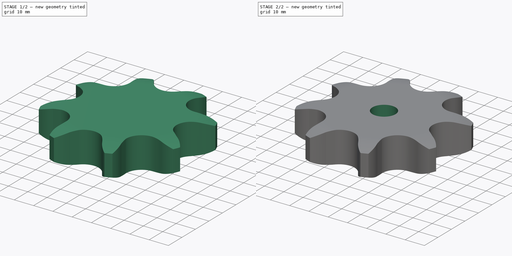
[diagram: build sequence overview — one tinted view per stage of 2, left to right]
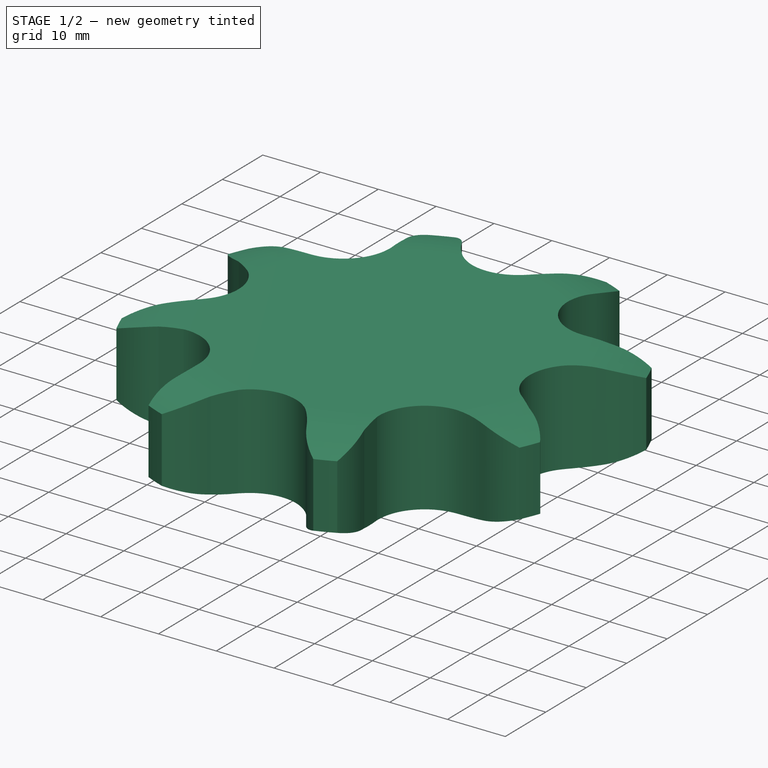
[diagram: stage 1 of 2 — iso view after this stage's code; geometry added in this stage tinted green]
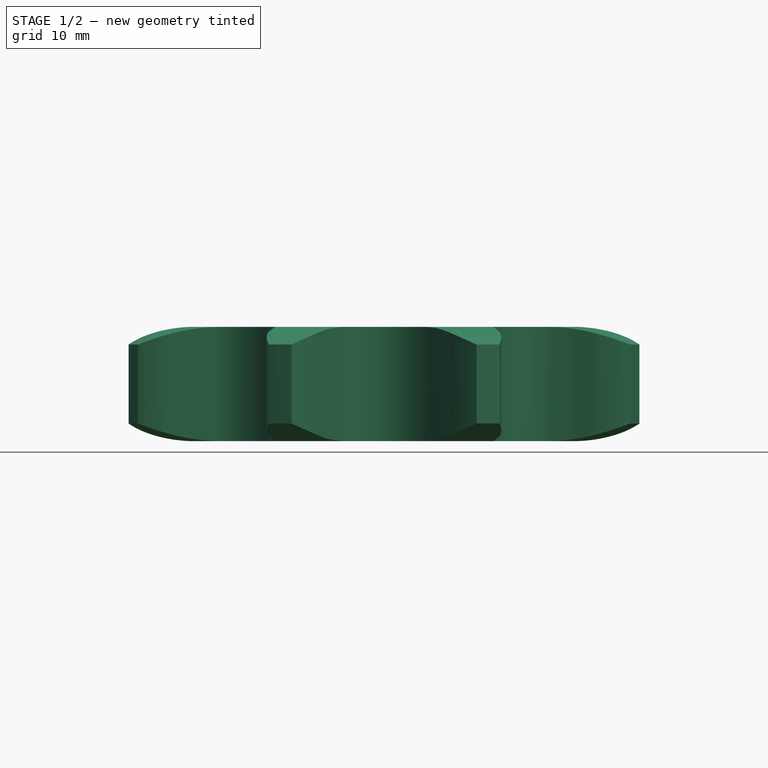
[diagram: stage 1 of 2 — front view after this stage's code; geometry added in this stage tinted green]
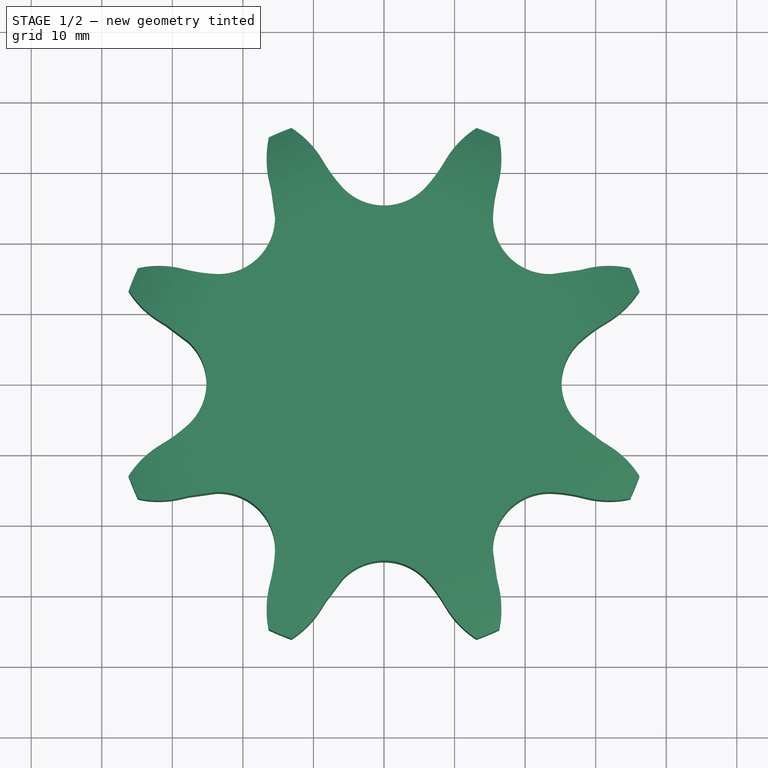
[diagram: stage 1 of 2 — top view after this stage's code; geometry added in this stage tinted green]
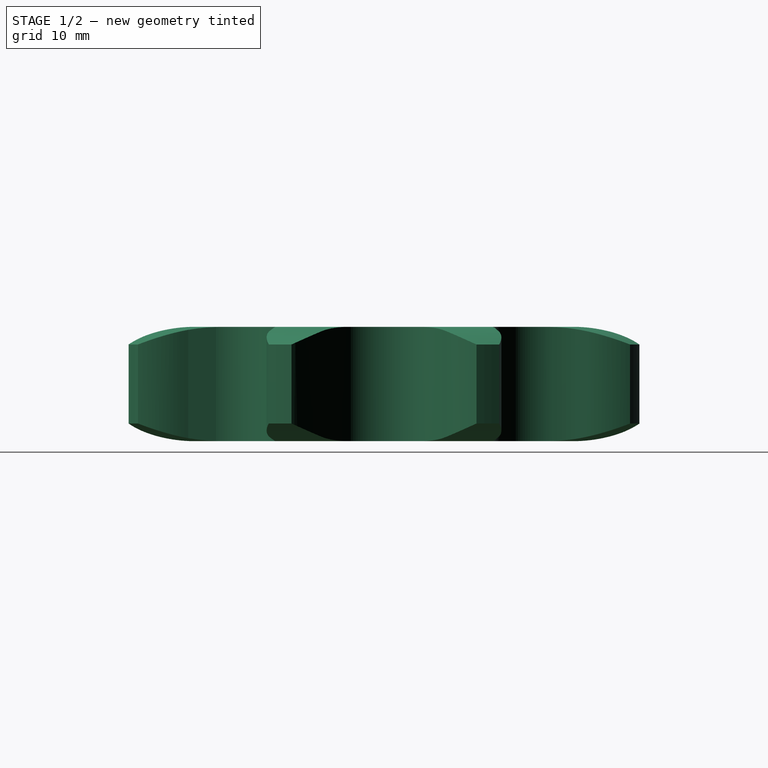
[diagram: stage 1 of 2 — right view after this stage's code; geometry added in this stage tinted green]
FCSTD DOCUMENT  (FreeCAD 0.20R29177 +233 (Git))
Label: Plate Wheel simplex 1x17,02
License: Attribution 4.0 International (CC BY 4.0)
LicenseURL: http://creativecommons.org/licenses/by/4.0/
objects: Sketcher::SketchObject×2, Spreadsheet::Sheet×1, Part::Part2DObjectPython×1, PartDesign::Pad×1, PartDesign::Groove×1, PartDesign::Pocket×1, PartDesign::Body×1
note: 10 computed .brp shape members not serialized (recipe doc carries the construction recipe); baked Part::Feature solids carry a one-line shape summary decoded from their .brp

FEATURE [Spreadsheet::Sheet] Spreadsheet  label="Data"
  TeethNumber = 0
  cells = A1=Teeth Number; B1=P (Pitch); C1=Wc (Chain width); D1=Dr (Roller diameter); E1=Tr (Tooth radius); F1=Rw (Radius width); G1=Wt (Tooth width); H1=z (Number of teeth); I1=De (External Diameter); J1=Dp (pitch diameter); K1=D (Hole diameter); L1=H (Total height); A2==hiddenref(.TeethNumber.String); B2(P)==.B3; C2(Wc)==.C3; D2(Dr)==.D3; E2(Tr)==.E3; F2(Rw)==.F3; G2(Wt)==.G3; H2(z)==.H3; I2(De)==.I3; J2(Dp)==.J3; K2(D)==.K3; L2(H)==.L3; A3=Z 8; B3=25.4; C3=17.02; D3=15.88; E3=26; F3=2.5; G3=16.2; H3=8; I3=77; J3=66.37; K3=12; L3=16.2; A4=Z 9; B4=25.4; C4=17.02; D4=15.88; E4=26; F4=2.5; G4=16.2; H4=9; I4=85; J4=74.27; K4=12; L4=16.2; A5=Z 10; B5=25.4; C5=17.02; D5=15.88; E5=26; F5=2.5; G5=16.2; H5=10; I5=93; J5=82.19; K5=12; L5=16.2; A6=Z 11; B6=25.4; C6=17.02; D6=15.88; E6=26; F6=2.5; G6=16.2; H6=11; I6=101.5; J6=90.14; K6=16; L6=16.2; A7=Z 12; B7=25.4; C7=17.02; D7=15.88; E7=26; F7=2.5; G7=16.2; H7=12; I7=109; J7=98.14; K7=16; L7=16.2; A8=Z 13; B8=25.4; C8=17.02; D8=15.88; E8=26; F8=2.5; G8=16.2; H8=13; I8=117; J8=106.12; K8=16; L8=16.2; A9=Z 14; B9=25.4; C9=17.02; D9=15.88; E9=26; F9=2.5; G9=16.2; H9=14; I9=125; J9=114.15; K9=16; L9=16.2; A10=Z 15; B10=25.4; C10=17.02; D10=15.88; E10=26; F10=2.5; G10=16.2; H10=15; I10=133; J10=122.17; K10=16; L10=16.2; A11=Z 16; B11=25.4; C11=17.02; D11=15.88; E11=26; F11=2.5; G11=16.2; H11=16; I11=141; J11=130.2; K11=20; L11=16.2; A12=Z 17; B12=25.4; C12=17.02; D12=15.88; E12=26; F12=2.5; G12=16.2; H12=17; I12=149; J12=138.22; K12=20; L12=16.2; A13=Z 18; B13=25.4; C13=17.02; D13=15.88; E13=26; F13=2.5; G13=16.2; H13=18; I13=157; J13=146.28; K13=20; L13=16.2; A14=Z 19; B14=25.4; C14=17.02; D14=15.88; E14=26; F14=2.5; G14=16.2; H14=19; I14=165.2; J14=154.33; K14=20; L14=16.2; A15=Z 20; B15=25.4; C15=17.02; D15=15.88; E15=26; F15=2.5; G15=16.2; H15=20; I15=173.2; J15=162.38; K15=20; L15=16.2; A16=Z 21; B16=25.4; C16=17.02; D16=15.88; E16=26; F16=2.5; G16=16.2; H16=21; I16=181.2; J16=170.43; K16=20; L16=16.2; A17=Z 22; B17=25.4; C17=17.02; D17=15.88; E17=26; F17=2.5; G17=16.2; H17=22; +100 more cells
  expr: .TeethNumber.Enum = cells[<<A3:|>>]
  expr: .cells.Bind.B2.ZZ2 = tuple(.cells; <<B>> + str(hiddenref(TeethNumber) + 3); <<ZZ>> + str(hiddenref(TeethNumber) + 3))
FEATURE [Sketcher::SketchObject] Sketch  label="Radius"
  FullyConstrained = true
  MapMode = 5
  Placement = pos=(0,0,0) rot=(1,0,0;1.5708rad)
  Support = -> [XZ_Plane]
  expr: .Constraints.Re = <<Data>>.De / 2
  expr: .Constraints.Rw = <<Data>>.Rw
  expr: .Constraints.Tr = <<Data>>.Tr
  expr: .Constraints.Wt = <<Data>>.Wt
  sketch-geometry (10):
    g0: LineSegment StartX=27.3757 StartY=0 StartZ=0 EndX=38.5 EndY=0 EndZ=0
    g1: LineSegment StartX=38.5 StartY=0 StartZ=0 EndX=38.5 EndY=2.5 EndZ=0
    g2: ArcOfCircle CenterX=27.3757 CenterY=26 CenterZ=0 NormalX=0 NormalY=0 NormalZ=1 AngleXU=0 Radius=26 StartAngle=4.71239 EndAngle=5.15451
    g3: LineSegment StartX=38.5 StartY=2.5 StartZ=0 EndX=38.5 EndY=13.7 EndZ=0
    g4: LineSegment StartX=27.3757 StartY=16.2 StartZ=0 EndX=38.5 EndY=16.2 EndZ=0
    g5: LineSegment StartX=38.5 StartY=16.2 StartZ=0 EndX=38.5 EndY=13.7 EndZ=0
    g6: ArcOfCircle CenterX=27.3757 CenterY=-9.8 CenterZ=0 NormalX=0 NormalY=0 NormalZ=1 AngleXU=0 Radius=26 StartAngle=1.12868 EndAngle=1.5708
    g7: LineSegment StartX=38.5 StartY=16.2 StartZ=0 EndX=49.6243 EndY=16.2 EndZ=0
    g8: LineSegment StartX=49.6243 StartY=16.2 StartZ=0 EndX=49.6243 EndY=0 EndZ=0
    g9: LineSegment StartX=49.6243 StartY=0 StartZ=0 EndX=38.5 EndY=0 EndZ=0
  constraints (28):
    c: PointOnObject(g0,g-1)
    c: Horizontal(g0)
    c: Coincident(g0,g1)
    c: Vertical(g1)
    c: Tangent(g2,g0) = -1.5708
    c: Coincident(g2,g1)
    c: Coincident(g3,g1)
    c: Vertical(g3)
    c: Horizontal(g4)
    c: Coincident(g4,g5)
    c: Vertical(g5)
    c: Coincident(g6,g5)
    c: Tangent(g6,g4) = 1.5708
    c: Coincident(g5,g3)
    c: Equal(g2,g6)
    c: Equal(g5,g1)
    c: Radius(g2) = 26  'Tr'
    c: DistanceY(g0,g4) = 16.2  'Wt'
    c: DistanceX(g0) = 38.5  'Re'
    c: DistanceY(g1,g1) = 2.5  'Rw'
    c: Coincident(g4,g7)
    c: Coincident(g7,g8)
    c: Vertical(g8)
    c: Coincident(g8,g9)
    c: Coincident(g9,g0)
    c: Horizontal(g7)
    c: Horizontal(g9)
    c: Equal(g0,g9)
FEATURE [Part::Part2DObjectPython] Sprocket  label="Teeth sketch"  # Draft 2D object (typed FeaturePython)
  ANSISize = 80
  NumberOfTeeth = 8
  Pitch = 25.4
  RollerDiameter = 15.88
  expr: NumberOfTeeth = <<Data>>.z
  expr: Pitch = <<Data>>.P
  expr: RollerDiameter = <<Data>>.Dr
FEATURE [PartDesign::Pad] Pad  label="Teeth"
  Direction = (0,0,1)
  Length = 16.2
  Length2 = 100
  Profile = -> Sprocket
  Type = 0
  expr: Length = <<Data>>.Wt
FEATURE [PartDesign::Groove] Groove  label="Teeth Radius"
  Angle = 360
  Axis = (-3e-16,3e-16,1)
  Base = (0,0,0)
  BaseFeature = -> Pad
  Profile = -> Sketch
  ReferenceAxis = -> Z_Axis
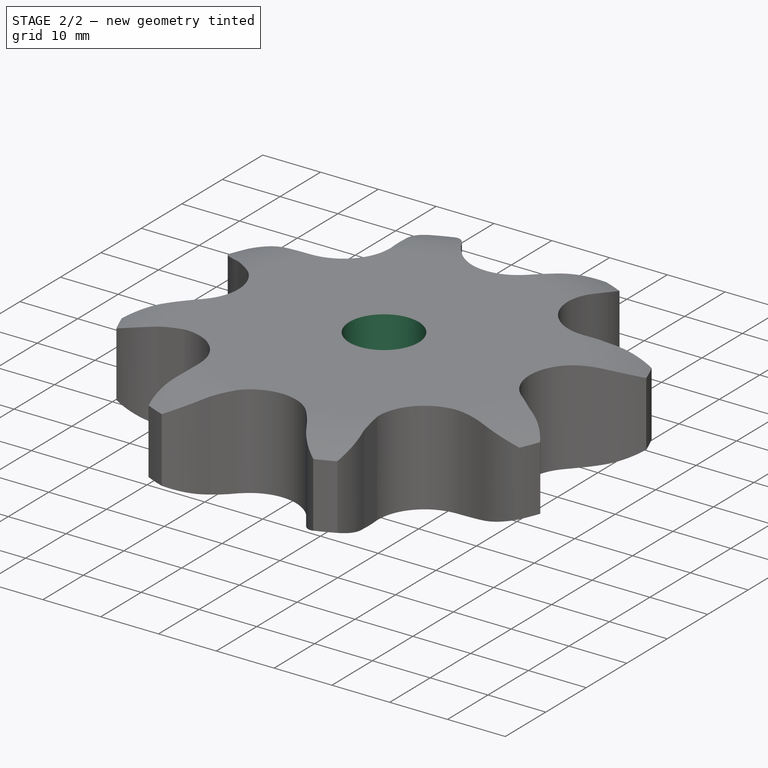
[diagram: stage 2 of 2 — iso view after this stage's code; geometry added in this stage tinted green]
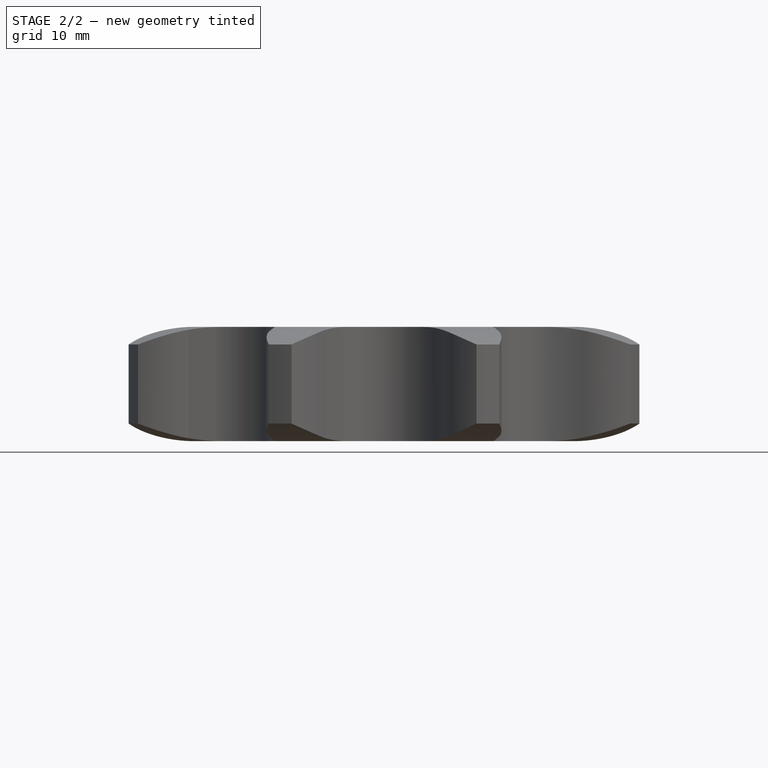
[diagram: stage 2 of 2 — front view after this stage's code; geometry added in this stage tinted green]
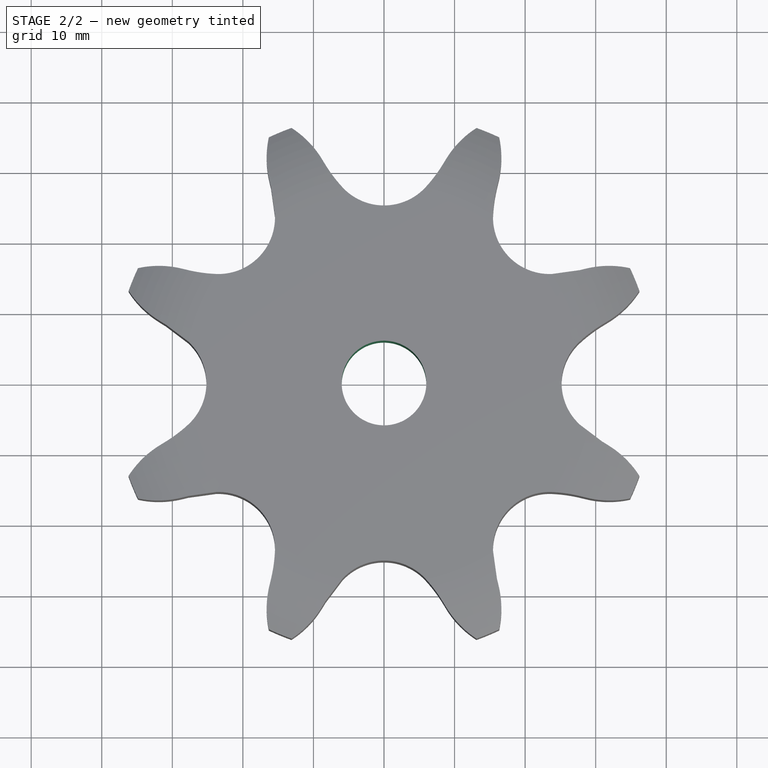
[diagram: stage 2 of 2 — top view after this stage's code; geometry added in this stage tinted green]
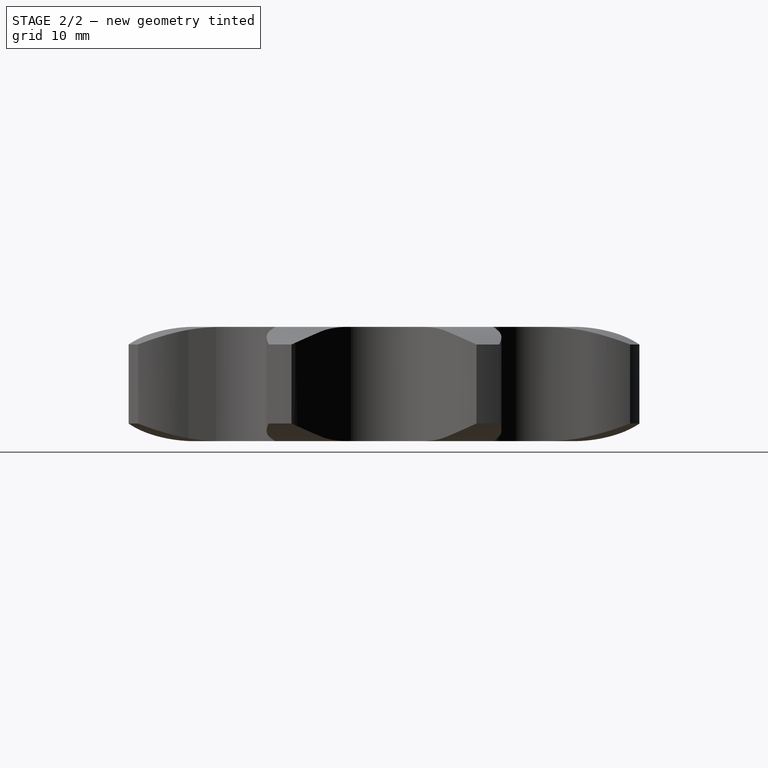
[diagram: stage 2 of 2 — right view after this stage's code; geometry added in this stage tinted green]
FEATURE [Sketcher::SketchObject] Sketch001  label="Hole Sketch"
  FullyConstrained = true
  MapMode = 5
  Support = -> [XY_Plane]
  expr: .Constraints.D = <<Data>>.D
  sketch-geometry (1):
    g0: Circle CenterX=0 CenterY=0 CenterZ=0 NormalX=0 NormalY=0 NormalZ=1 AngleXU=0 Radius=6
  constraints (2):
    c: Coincident(g0,g-1)
    c: Diameter(g0) = 12  'D'
FEATURE [PartDesign::Pocket] Pocket  label="Hole"
  BaseFeature = -> Groove
  Direction = (0,0,-1)
  Length = 5
  Length2 = 100
  Midplane = true
  Profile = -> Sketch001
  Type = 1
FEATURE [PartDesign::Body] Body  label="Plate Wheel simplex 1x17,02"
  Group = -> [Sprocket,Pad,Sketch,Groove,Sketch001,Pocket]
  Origin = -> Origin
  Tip = -> Pocket
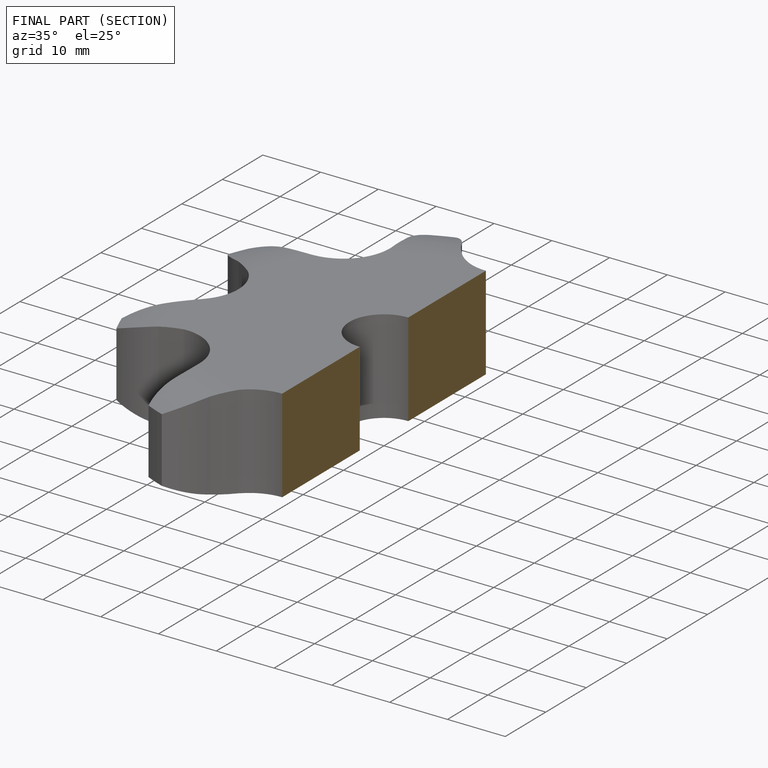
[diagram: finished part — half-section view (interior)]
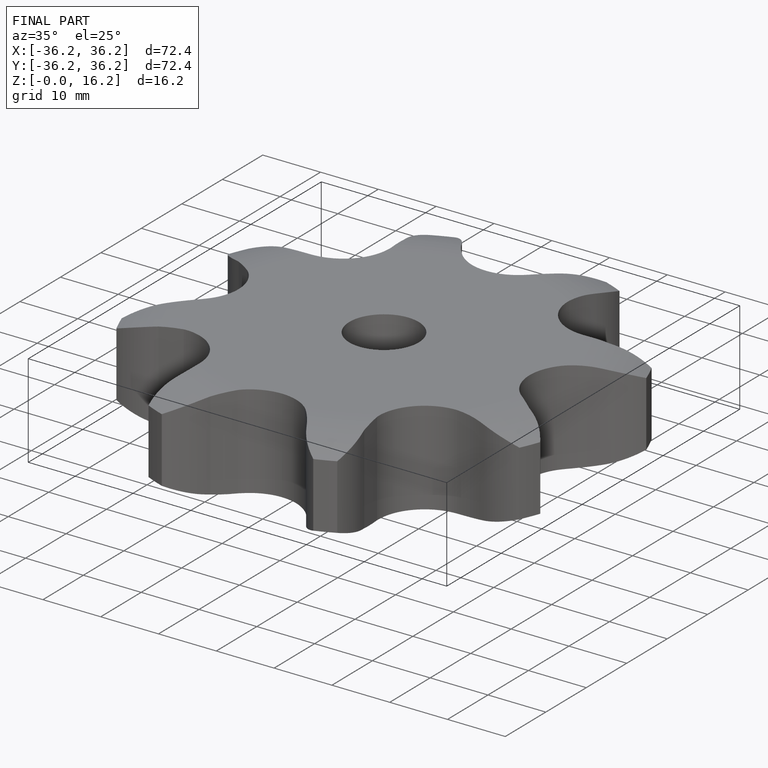
[diagram: finished part — iso view with bounding-box wireframe]
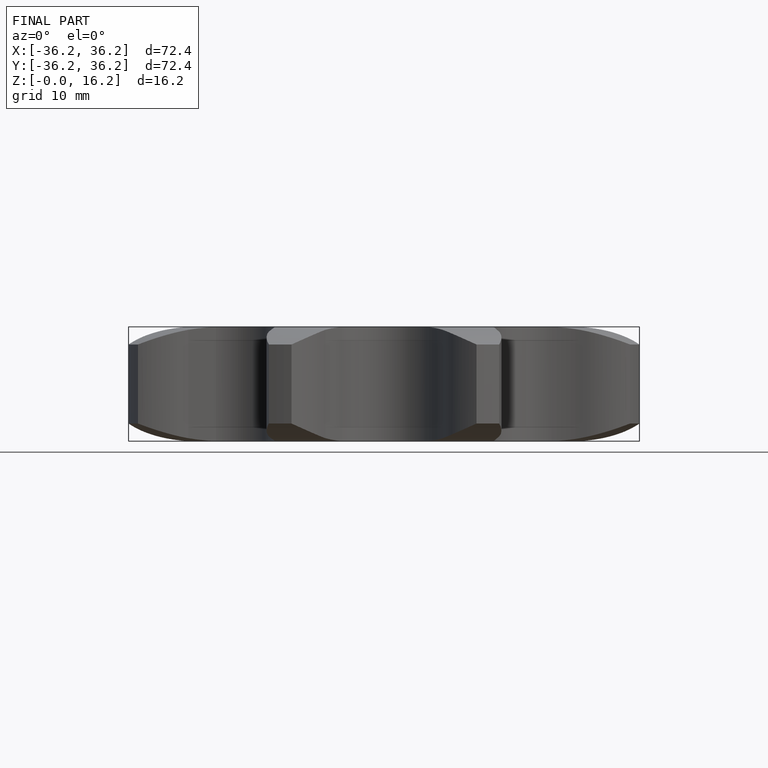
[diagram: finished part — front view with bounding-box wireframe]
